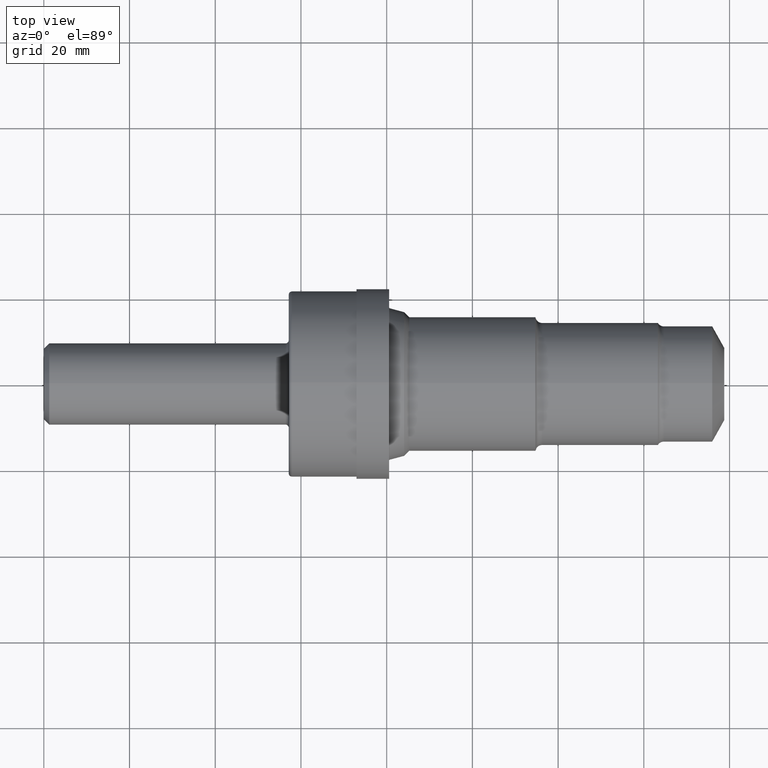
[diagram: clean part render]
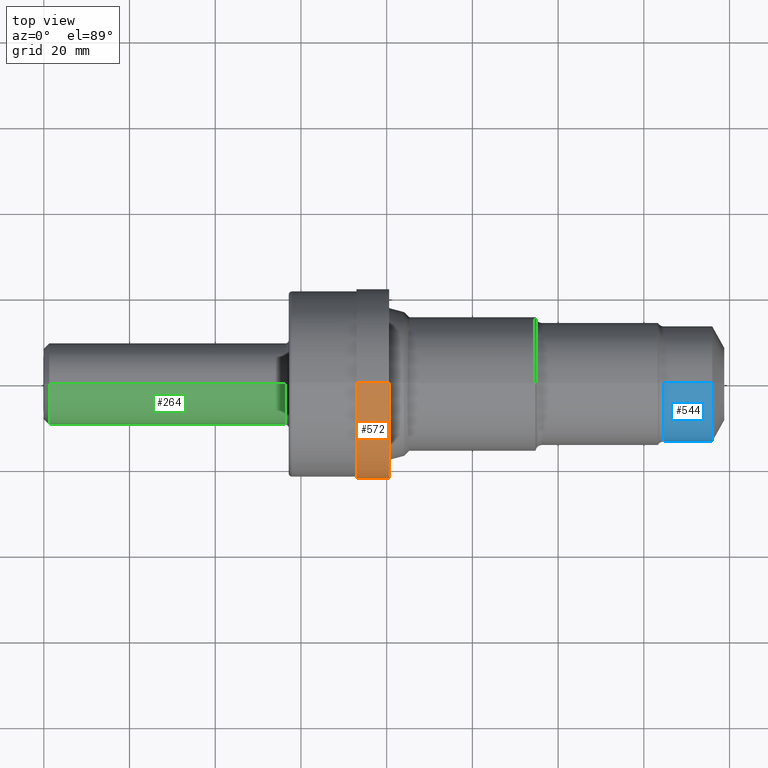
[diagram: same view with three faces highlighted in distinct colors, each labeled with its STEP entity id]
A machine part, top view with three faces highlighted in distinct colors.
Their STEP definitions:

[orange] entity #572 — the highlighted cylindrical surface (partial cylindrical patch) has radius 22.225 mm, axis along (-1, -0, -0).
#7 = ORIENTED_EDGE ( 'NONE', *, *, #403, .F. ) ;
#13 = ORIENTED_EDGE ( 'NONE', *, *, #702, .T. ) ;
#78 = CARTESIAN_POINT ( 'NONE',  ( 0.0000000000000000000, 0.0000000000000000000, 0.8750000000000000000 ) ) ;
#90 = DIRECTION ( 'NONE',  ( 0.0000000000000000000, 0.0000000000000000000, 1.000000000000000000 ) ) ;
#91 = FACE_OUTER_BOUND ( 'NONE', #930, .T. ) ;
#94 = DIRECTION ( 'NONE',  ( -1.000000000000000000, -0.0000000000000000000, -0.0000000000000000000 ) ) ;
#117 = CARTESIAN_POINT ( 'NONE',  ( 3.172000000000000597, 0.0000000000000000000, 0.0000000000000000000 ) ) ;
#121 = CARTESIAN_POINT ( 'NONE',  ( 2.872000000000000330, 0.0000000000000000000, 0.8750000000000000000 ) ) ;
#124 = AXIS2_PLACEMENT_3D ( 'NONE', #242, #694, #675 ) ;
#144 = DIRECTION ( 'NONE',  ( -1.000000000000000000, -0.0000000000000000000, -0.0000000000000000000 ) ) ;
#169 = CARTESIAN_POINT ( 'NONE',  ( 3.172000000000000597, 0.0000000000000000000, 0.8750000000000000000 ) ) ;
#174 = CIRCLE ( 'NONE', #390, 0.8750000000000000000 ) ;
#187 = VERTEX_POINT ( 'NONE', #121 ) ;
#205 = VECTOR ( 'NONE', #840, 39.37007874015748143 ) ;
#242 = CARTESIAN_POINT ( 'NONE',  ( 0.0000000000000000000, 0.0000000000000000000, 0.0000000000000000000 ) ) ;
#291 = LINE ( 'NONE', #78, #508 ) ;
#292 = EDGE_CURVE ( 'NONE', #824, #187, #291, .T. ) ;
#304 = CARTESIAN_POINT ( 'NONE',  ( 0.0000000000000000000, 1.071565949253934025E-16, -0.8750000000000000000 ) ) ;
#341 = LINE ( 'NONE', #304, #205 ) ;
#390 = AXIS2_PLACEMENT_3D ( 'NONE', #582, #424, #793 ) ;
#403 = EDGE_CURVE ( 'NONE', #700, #187, #174, .T. ) ;
#424 = DIRECTION ( 'NONE',  ( -1.000000000000000000, -0.0000000000000000000, -0.0000000000000000000 ) ) ;
#472 = CARTESIAN_POINT ( 'NONE',  ( 3.172000000000000597, 1.071565949253934025E-16, -0.8750000000000000000 ) ) ;
#481 = CYLINDRICAL_SURFACE ( 'NONE', #124, 0.8750000000000000000 ) ;
#508 = VECTOR ( 'NONE', #144, 39.37007874015748143 ) ;
#568 = ORIENTED_EDGE ( 'NONE', *, *, #292, .T. ) ;
#572 = ADVANCED_FACE ( 'NONE', ( #91 ), #481, .T. ) ;
#582 = CARTESIAN_POINT ( 'NONE',  ( 2.872000000000000330, 0.0000000000000000000, 0.0000000000000000000 ) ) ;
#631 = CARTESIAN_POINT ( 'NONE',  ( 2.872000000000000330, 1.071565949253934025E-16, -0.8750000000000000000 ) ) ;
#648 = VERTEX_POINT ( 'NONE', #472 ) ;
#650 = CIRCLE ( 'NONE', #913, 0.8750000000000000000 ) ;
#674 = ORIENTED_EDGE ( 'NONE', *, *, #898, .F. ) ;
#675 = DIRECTION ( 'NONE',  ( 0.0000000000000000000, 0.0000000000000000000, 1.000000000000000000 ) ) ;
#694 = DIRECTION ( 'NONE',  ( -1.000000000000000000, -0.0000000000000000000, -0.0000000000000000000 ) ) ;
#700 = VERTEX_POINT ( 'NONE', #631 ) ;
#702 = EDGE_CURVE ( 'NONE', #648, #824, #650, .T. ) ;
#793 = DIRECTION ( 'NONE',  ( 0.0000000000000000000, 0.0000000000000000000, 1.000000000000000000 ) ) ;
#824 = VERTEX_POINT ( 'NONE', #169 ) ;
#840 = DIRECTION ( 'NONE',  ( -1.000000000000000000, -0.0000000000000000000, -0.0000000000000000000 ) ) ;
#898 = EDGE_CURVE ( 'NONE', #648, #700, #341, .T. ) ;
#913 = AXIS2_PLACEMENT_3D ( 'NONE', #117, #94, #90 ) ;
#930 = EDGE_LOOP ( 'NONE', ( #674, #13, #568, #7 ) ) ;

[blue] entity #544 — the highlighted cylindrical surface (partial cylindrical patch) has radius 13.5103 mm, axis along (-1, -0, -0).
#15 = LINE ( 'NONE', #649, #782 ) ;
#60 = DIRECTION ( 'NONE',  ( 0.0000000000000000000, 0.0000000000000000000, 1.000000000000000000 ) ) ;
#109 = CYLINDRICAL_SURFACE ( 'NONE', #569, 0.5319000000000000394 ) ;
#136 = VERTEX_POINT ( 'NONE', #937 ) ;
#173 = EDGE_CURVE ( 'NONE', #379, #595, #385, .T. ) ;
#190 = LINE ( 'NONE', #754, #919 ) ;
#252 = DIRECTION ( 'NONE',  ( 0.0000000000000000000, 0.0000000000000000000, 1.000000000000000000 ) ) ;
#335 = DIRECTION ( 'NONE',  ( -1.000000000000000000, -0.0000000000000000000, -0.0000000000000000000 ) ) ;
#378 = EDGE_CURVE ( 'NONE', #136, #595, #15, .T. ) ;
#379 = VERTEX_POINT ( 'NONE', #912 ) ;
#385 = CIRCLE ( 'NONE', #763, 0.5319000000000000394 ) ;
#412 = EDGE_CURVE ( 'NONE', #499, #136, #534, .T. ) ;
#435 = CARTESIAN_POINT ( 'NONE',  ( 6.140000000000000568, 6.513896324664773679E-17, -0.5319000000000001505 ) ) ;
#470 = AXIS2_PLACEMENT_3D ( 'NONE', #925, #335, #252 ) ;
#473 = ORIENTED_EDGE ( 'NONE', *, *, #883, .F. ) ;
#499 = VERTEX_POINT ( 'NONE', #435 ) ;
#516 = DIRECTION ( 'NONE',  ( -1.000000000000000000, -0.0000000000000000000, -0.0000000000000000000 ) ) ;
#534 = CIRCLE ( 'NONE', #470, 0.5319000000000000394 ) ;
#544 = ADVANCED_FACE ( 'NONE', ( #717 ), #109, .T. ) ;
#569 = AXIS2_PLACEMENT_3D ( 'NONE', #604, #690, #844 ) ;
#595 = VERTEX_POINT ( 'NONE', #622 ) ;
#604 = CARTESIAN_POINT ( 'NONE',  ( 0.0000000000000000000, 0.0000000000000000000, 0.0000000000000000000 ) ) ;
#622 = CARTESIAN_POINT ( 'NONE',  ( 5.694979162646339965, 0.0000000000000000000, 0.5319000000000000394 ) ) ;
#649 = CARTESIAN_POINT ( 'NONE',  ( 0.0000000000000000000, 0.0000000000000000000, 0.5319000000000000394 ) ) ;
#690 = DIRECTION ( 'NONE',  ( -1.000000000000000000, -0.0000000000000000000, -0.0000000000000000000 ) ) ;
#709 = ORIENTED_EDGE ( 'NONE', *, *, #412, .T. ) ;
#712 = DIRECTION ( 'NONE',  ( -1.000000000000000000, -0.0000000000000000000, -0.0000000000000000000 ) ) ;
#713 = ORIENTED_EDGE ( 'NONE', *, *, #173, .F. ) ;
#717 = FACE_OUTER_BOUND ( 'NONE', #726, .T. ) ;
#726 = EDGE_LOOP ( 'NONE', ( #473, #709, #923, #713 ) ) ;
#754 = CARTESIAN_POINT ( 'NONE',  ( 0.0000000000000000000, 6.513896324664771214E-17, -0.5319000000000000394 ) ) ;
#763 = AXIS2_PLACEMENT_3D ( 'NONE', #941, #516, #60 ) ;
#782 = VECTOR ( 'NONE', #712, 39.37007874015748143 ) ;
#844 = DIRECTION ( 'NONE',  ( 0.0000000000000000000, 0.0000000000000000000, 1.000000000000000000 ) ) ;
#883 = EDGE_CURVE ( 'NONE', #499, #379, #190, .T. ) ;
#904 = DIRECTION ( 'NONE',  ( -1.000000000000000000, -0.0000000000000000000, -0.0000000000000000000 ) ) ;
#912 = CARTESIAN_POINT ( 'NONE',  ( 5.694979162646339965, 6.706778195530479841E-17, -0.5319000000000000394 ) ) ;
#919 = VECTOR ( 'NONE', #904, 39.37007874015748143 ) ;
#923 = ORIENTED_EDGE ( 'NONE', *, *, #378, .T. ) ;
#925 = CARTESIAN_POINT ( 'NONE',  ( 6.140000000000000568, 0.0000000000000000000, 0.0000000000000000000 ) ) ;
#937 = CARTESIAN_POINT ( 'NONE',  ( 6.140000000000000568, 0.0000000000000000000, 0.5319000000000000394 ) ) ;
#941 = CARTESIAN_POINT ( 'NONE',  ( 5.694979162646339965, 0.0000000000000000000, 0.0000000000000000000 ) ) ;

[green] entity #264 — the highlighted cylindrical surface (partial cylindrical patch) has radius 9.5212 mm, axis along (-1, -0, -0).
#18 = EDGE_CURVE ( 'NONE', #812, #663, #592, .T. ) ;
#70 = CIRCLE ( 'NONE', #196, 0.3748500000000000165 ) ;
#95 = ORIENTED_EDGE ( 'NONE', *, *, #18, .T. ) ;
#98 = CYLINDRICAL_SURFACE ( 'NONE', #922, 0.3748500000000002386 ) ;
#106 = ORIENTED_EDGE ( 'NONE', *, *, #580, .F. ) ;
#114 = FACE_OUTER_BOUND ( 'NONE', #182, .T. ) ;
#182 = EDGE_LOOP ( 'NONE', ( #106, #219, #95, #560 ) ) ;
#196 = AXIS2_PLACEMENT_3D ( 'NONE', #464, #459, #451 ) ;
#219 = ORIENTED_EDGE ( 'NONE', *, *, #443, .T. ) ;
#221 = CARTESIAN_POINT ( 'NONE',  ( 0.0000000000000000000, 0.0000000000000000000, 0.3748500000000002386 ) ) ;
#251 = DIRECTION ( 'NONE',  ( 0.0000000000000000000, 0.0000000000000000000, 1.000000000000000000 ) ) ;
#253 = CIRCLE ( 'NONE', #324, 0.3748500000000005161 ) ;
#258 = CARTESIAN_POINT ( 'NONE',  ( 2.220000000000000195, 0.0000000000000000000, 0.0000000000000000000 ) ) ;
#264 = ADVANCED_FACE ( 'NONE', ( #114 ), #98, .T. ) ;
#297 = DIRECTION ( 'NONE',  ( -1.000000000000000000, -0.0000000000000000000, -0.0000000000000000000 ) ) ;
#300 = CARTESIAN_POINT ( 'NONE',  ( 2.220000000000000195, 0.0000000000000000000, 0.3748500000000005161 ) ) ;
#324 = AXIS2_PLACEMENT_3D ( 'NONE', #258, #431, #251 ) ;
#327 = VERTEX_POINT ( 'NONE', #897 ) ;
#362 = VERTEX_POINT ( 'NONE', #760 ) ;
#381 = CARTESIAN_POINT ( 'NONE',  ( 0.05000000000000000278, 4.590588526603853748E-17, 0.3748500000000000165 ) ) ;
#431 = DIRECTION ( 'NONE',  ( -1.000000000000000000, -0.0000000000000000000, -0.0000000000000000000 ) ) ;
#443 = EDGE_CURVE ( 'NONE', #362, #812, #253, .T. ) ;
#451 = DIRECTION ( 'NONE',  ( 0.0000000000000000000, 0.0000000000000000000, 1.000000000000000000 ) ) ;
#459 = DIRECTION ( 'NONE',  ( -1.000000000000000000, -0.0000000000000000000, -0.0000000000000000000 ) ) ;
#464 = CARTESIAN_POINT ( 'NONE',  ( 0.05000000000000000278, 0.0000000000000000000, 0.0000000000000000000 ) ) ;
#560 = ORIENTED_EDGE ( 'NONE', *, *, #620, .F. ) ;
#580 = EDGE_CURVE ( 'NONE', #362, #327, #696, .T. ) ;
#592 = LINE ( 'NONE', #221, #744 ) ;
#602 = CARTESIAN_POINT ( 'NONE',  ( 0.0000000000000000000, 0.0000000000000000000, 0.0000000000000000000 ) ) ;
#620 = EDGE_CURVE ( 'NONE', #327, #663, #70, .T. ) ;
#654 = CARTESIAN_POINT ( 'NONE',  ( 0.0000000000000000000, 4.590588526603856213E-17, -0.3748500000000002386 ) ) ;
#663 = VERTEX_POINT ( 'NONE', #381 ) ;
#681 = DIRECTION ( 'NONE',  ( -1.000000000000000000, -0.0000000000000000000, -0.0000000000000000000 ) ) ;
#696 = LINE ( 'NONE', #654, #742 ) ;
#742 = VECTOR ( 'NONE', #681, 39.37007874015748143 ) ;
#744 = VECTOR ( 'NONE', #297, 39.37007874015748143 ) ;
#760 = CARTESIAN_POINT ( 'NONE',  ( 2.220000000000000195, 4.590588526603859294E-17, -0.3748500000000005161 ) ) ;
#812 = VERTEX_POINT ( 'NONE', #300 ) ;
#822 = DIRECTION ( 'NONE',  ( 0.0000000000000000000, 0.0000000000000000000, 1.000000000000000000 ) ) ;
#890 = DIRECTION ( 'NONE',  ( -1.000000000000000000, -0.0000000000000000000, -0.0000000000000000000 ) ) ;
#897 = CARTESIAN_POINT ( 'NONE',  ( 0.05000000000000000278, 0.0000000000000000000, -0.3748500000000000165 ) ) ;
#922 = AXIS2_PLACEMENT_3D ( 'NONE', #602, #890, #822 ) ;